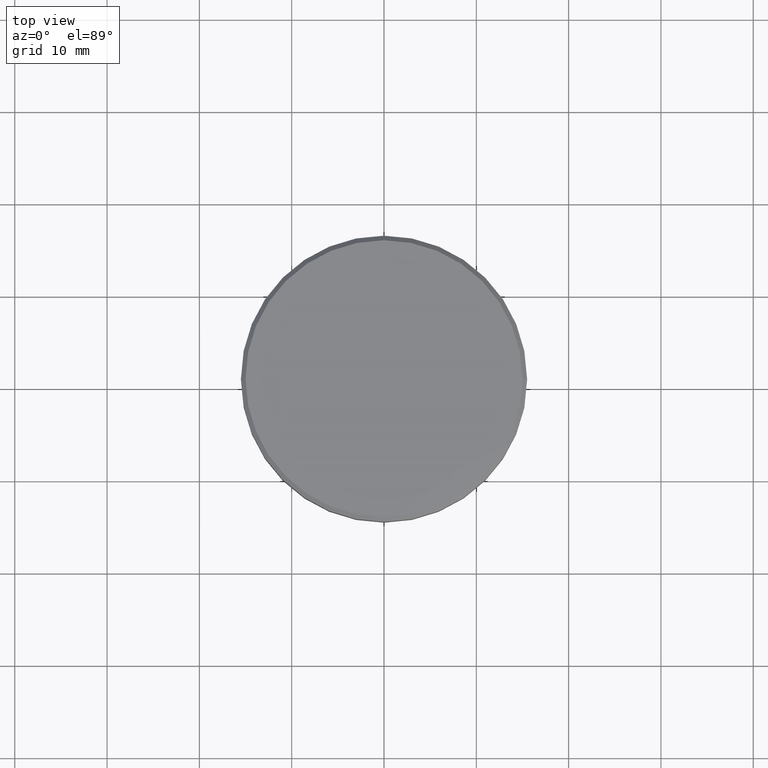
[diagram: clean part render]
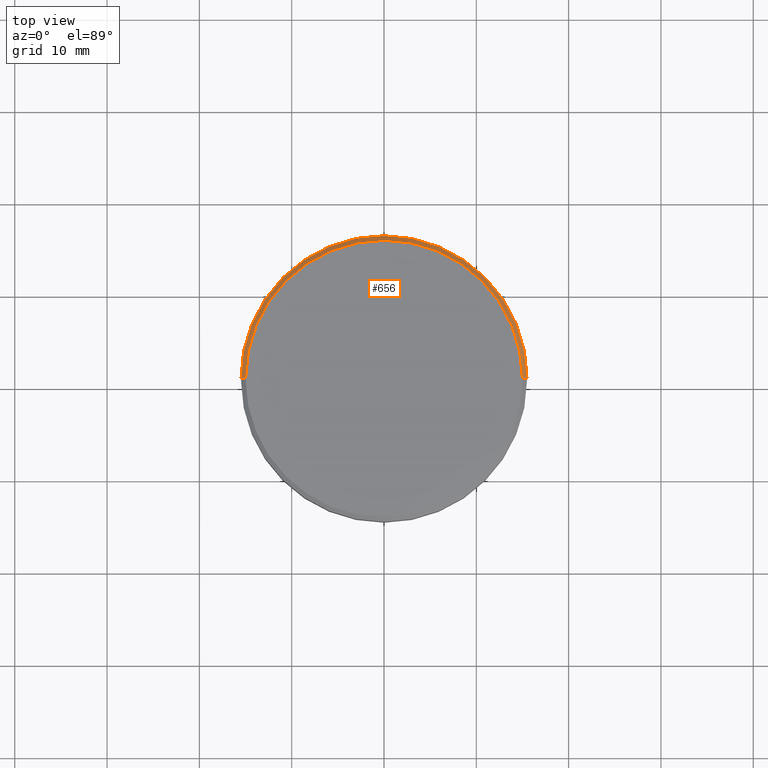
[diagram: same view with one face highlighted and labeled with its STEP entity id]
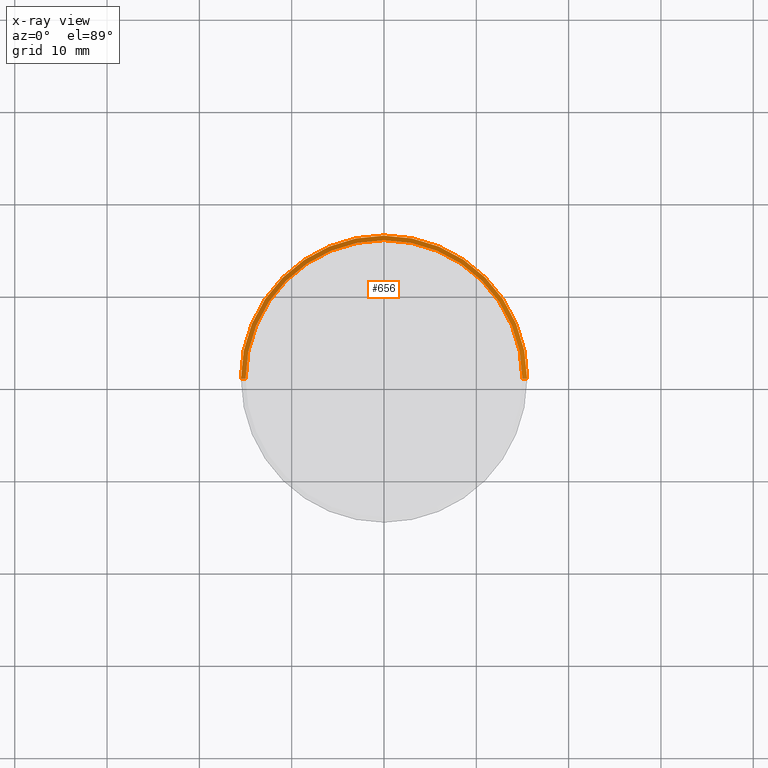
[diagram: x-ray of the same camera — body ghosted, the highlighted face saturated]
A machine part, top view. The second image highlights one B-rep face of the part: STEP entity #656.
The next image is the same camera in x-ray: the body ghosted, the highlighted face saturated — about 0% of this face is hidden behind the body in this view.
In plain terms, the highlighted conical surface has half-angle 45 deg.
Its self-contained STEP definition (entity closure, byte-faithful):
#69 = CARTESIAN_POINT ( 'NONE',  ( -15.50000000000000000, 1.898202538678397557E-15, -0.5000000000000057732 ) ) ;
#124 = EDGE_LOOP ( 'NONE', ( #463, #616, #940, #393 ) ) ;
#149 = AXIS2_PLACEMENT_3D ( 'NONE', #357, #936, #1037 ) ;
#161 = CARTESIAN_POINT ( 'NONE',  ( -14.99999999999999289, 0.000000000000000000, 0.000000000000000000 ) ) ;
#212 = CARTESIAN_POINT ( 'NONE',  ( 0.000000000000000000, 0.000000000000000000, 0.000000000000000000 ) ) ;
#234 = CARTESIAN_POINT ( 'NONE',  ( 15.50000000000000000, 0.000000000000000000, -0.5000000000000057732 ) ) ;
#239 = DIRECTION ( 'NONE',  ( -0.7071067811865487940, 0.000000000000000000, -0.7071067811865463515 ) ) ;
#273 = EDGE_CURVE ( 'NONE', #791, #604, #668, .T. ) ;
#276 = FACE_OUTER_BOUND ( 'NONE', #124, .T. ) ;
#279 = CARTESIAN_POINT ( 'NONE',  ( 0.000000000000000000, 0.000000000000000000, -0.5000000000000057732 ) ) ;
#336 = VERTEX_POINT ( 'NONE', #234 ) ;
#355 = VECTOR ( 'NONE', #239, 1000.000000000000000 ) ;
#357 = CARTESIAN_POINT ( 'NONE',  ( 0.000000000000000000, 0.000000000000000000, 0.000000000000000000 ) ) ;
#366 = CARTESIAN_POINT ( 'NONE',  ( 14.99999999999999289, 1.836970198721028800E-15, 0.000000000000000000 ) ) ;
#386 = DIRECTION ( 'NONE',  ( 1.000000000000000000, 0.000000000000000000, 0.000000000000000000 ) ) ;
#393 = ORIENTED_EDGE ( 'NONE', *, *, #968, .F. ) ;
#397 = DIRECTION ( 'NONE',  ( -0.000000000000000000, -0.000000000000000000, 1.000000000000000000 ) ) ;
#417 = EDGE_CURVE ( 'NONE', #912, #336, #1104, .T. ) ;
#463 = ORIENTED_EDGE ( 'NONE', *, *, #273, .F. ) ;
#565 = VECTOR ( 'NONE', #868, 1000.000000000000000 ) ;
#587 = AXIS2_PLACEMENT_3D ( 'NONE', #279, #676, #948 ) ;
#604 = VERTEX_POINT ( 'NONE', #830 ) ;
#616 = ORIENTED_EDGE ( 'NONE', *, *, #677, .T. ) ;
#656 = ADVANCED_FACE ( 'NONE', ( #276 ), #869, .T. ) ;
#657 = CARTESIAN_POINT ( 'NONE',  ( 14.99999999999999289, 1.867586368699713376E-15, 0.000000000000000000 ) ) ;
#668 = CIRCLE ( 'NONE', #1056, 14.99999999999999289 ) ;
#676 = DIRECTION ( 'NONE',  ( 0.000000000000000000, 0.000000000000000000, -1.000000000000000000 ) ) ;
#677 = EDGE_CURVE ( 'NONE', #791, #336, #748, .T. ) ;
#748 = LINE ( 'NONE', #366, #565 ) ;
#791 = VERTEX_POINT ( 'NONE', #657 ) ;
#830 = CARTESIAN_POINT ( 'NONE',  ( -14.99999999999999289, 0.000000000000000000, 0.000000000000000000 ) ) ;
#868 = DIRECTION ( 'NONE',  ( 0.7071067811865487940, 8.659560562354948882E-17, -0.7071067811865463515 ) ) ;
#869 = CONICAL_SURFACE ( 'NONE', #149, 14.99999999999999289, 0.7853981633974500554 ) ;
#907 = LINE ( 'NONE', #161, #355 ) ;
#912 = VERTEX_POINT ( 'NONE', #69 ) ;
#936 = DIRECTION ( 'NONE',  ( 0.000000000000000000, 0.000000000000000000, -1.000000000000000000 ) ) ;
#940 = ORIENTED_EDGE ( 'NONE', *, *, #417, .F. ) ;
#948 = DIRECTION ( 'NONE',  ( 1.000000000000000000, 0.000000000000000000, 0.000000000000000000 ) ) ;
#968 = EDGE_CURVE ( 'NONE', #604, #912, #907, .T. ) ;
#1037 = DIRECTION ( 'NONE',  ( -1.000000000000000000, 0.000000000000000000, 0.000000000000000000 ) ) ;
#1056 = AXIS2_PLACEMENT_3D ( 'NONE', #212, #397, #386 ) ;
#1104 = CIRCLE ( 'NONE', #587, 15.50000000000000000 ) ;